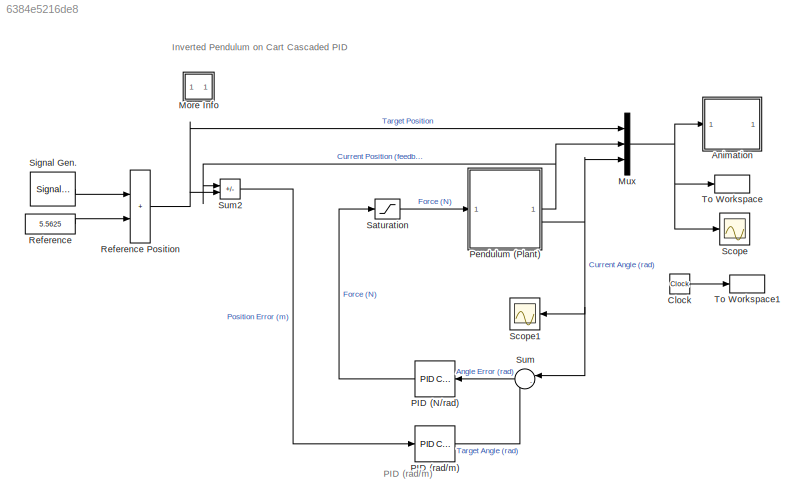
MODEL slx_6384e5216de8
KIND model
CONFIG AbsTol = 1e-6
CONFIG EnableMultiTasking = off
CONFIG FixedStep = 0.02
CONFIG MaxStep = 0.02
CONFIG MinStep = auto
CONFIG RelTol = 1e-3
CONFIG SampleTimeConstraint = Unconstrained
CONFIG SolverName = FixedStepAuto
CONFIG StartTime = 0
CONFIG StopTime = 20
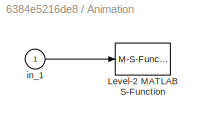
BLOCK [SubSystem] Animation
BLOCK [M-S-Function] Animation/Level-2 MATLAB S-Function
  FunctionName = pendan
  Parameters = RefBlock
BLOCK [Inport] Animation/in_1
BLOCK [Clock] Clock
BLOCK [SubSystem] More Info
  OpenFcn = showExample('simulink_general/penddemoExample')
BLOCK [Mux] Mux
  DisplayOption = bar
  Inputs = 3
BLOCK [Reference] PID (N//rad)  REF=slpidlib/PID Controller
  LibrarySourceBlock = simulink/Continuous/PID Controller
  SourceBlock = slpidlib/PID Controller
  SourceType = PID 1dof
BLOCK [Reference] PID (rad//m)  REF=slpidlib/PID Controller
  LibrarySourceBlock = simulink/Continuous/PID Controller
  SourceBlock = slpidlib/PID Controller
  SourceType = PID 1dof
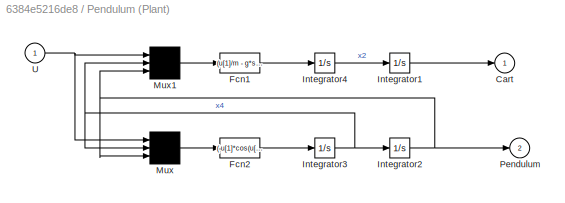
BLOCK [SubSystem] Pendulum (Plant)
BLOCK [Outport] Pendulum (Plant)/Cart
  InitialOutput = 0
  Unit = m
  VectorParamsAs1DForOutWhenUnconnected = off
BLOCK [Fcn] Pendulum (Plant)/Fcn1
  Expr = (u[1]/m - g*sin(u[3])*cos(u[3]) + l*power(u[2],2)*sin(u[3]))/(Mcart/m + power(sin(u[3]),2))
BLOCK [Fcn] Pendulum (Plant)/Fcn2
  Expr = (-u[1]*cos(u[3])/m + (Mcart+m)*g*sin(u[3])/m - l*power(u[2],2)*sin(u[3])*cos(u[3]))/(l*(Mcart/m + power(sin(u[3]),2)))
BLOCK [Integrator] Pendulum (Plant)/Integrator1
BLOCK [Integrator] Pendulum (Plant)/Integrator2
BLOCK [Integrator] Pendulum (Plant)/Integrator3
BLOCK [Integrator] Pendulum (Plant)/Integrator4
BLOCK [Mux] Pendulum (Plant)/Mux
  Inputs = 3
BLOCK [Mux] Pendulum (Plant)/Mux1
  Inputs = 3
BLOCK [Outport] Pendulum (Plant)/Pendulum
  InitialOutput = 0
  Port = 2
  Unit = rad
  VectorParamsAs1DForOutWhenUnconnected = off
BLOCK [Inport] Pendulum (Plant)/U
  Unit = N
BLOCK [Constant] Reference
  Value = 5.5625
BLOCK [Sum] Reference Position
  IconShape = rectangular
  InputSameDT = on
  OutDataTypeStr = Inherit: Same as first input
  SaturateOnIntegerOverflow = on
BLOCK [Saturate] Saturation
  LowerLimit = -10
  UpperLimit = 10
BLOCK [Scope] Scope
  Floating = off
  NumInputPorts = 1
  ScopeSpecificationString = Simulink.scopes.TimeScopeBlockCfg('CurrentConfiguration', extmgr.ConfigurationSet(extmgr.Configuration('Core','General UI',true),extmgr.Configuration('Core','Source UI',true),extmgr.Configuration('Sources','WiredSimulink',true),extmgr.Configuration('Visuals','Time Domain',true,'SerializedDisplays',{struct('MinYLimReal','-8.56852','MaxYLimReal','14.18038','YLabelReal','Refernce and Cart Position (m...<+1735ch>
BLOCK [Scope] Scope1
  Floating = off
  NumInputPorts = 1
  ScopeSpecificationString = Simulink.scopes.TimeScopeBlockCfg('CurrentConfiguration', extmgr.ConfigurationSet(extmgr.Configuration('Core','General UI',true),extmgr.Configuration('Core','Source UI',true),extmgr.Configuration('Sources','WiredSimulink',true,'DataLoggingVariableName','ScopeData1'),extmgr.Configuration('Visuals','Time Domain',true,'SerializedDisplays',{struct('MinYLimReal','-0.10097','MaxYLimReal','0.14294','YLab...<+1407ch>
BLOCK [SignalGenerator] Signal Gen.
  Amplitude = 0
  Frequency = 0.0400000
  Units = rad/sec
  WaveForm = square
BLOCK [Sum] Sum
  Inputs = |-+
BLOCK [Sum] Sum2
  IconShape = rectangular
  InputSameDT = on
  Inputs = -+
  OutDataTypeStr = Inherit: Same as first input
  SaturateOnIntegerOverflow = on
BLOCK [ToWorkspace] To Workspace
  SampleTime = 0.1
  VariableName = y
BLOCK [ToWorkspace] To Workspace1
  SampleTime = 0.1
  VariableName = t
ANNOTATION (root): Inverted Pendulum on Cart Cascaded PID
ANNOTATION (root): PID (rad/m)
LINE Animation/in_1:1 -> Animation/Level-2 MATLAB S-Function:1
LINE Clock:1 -> To Workspace1:1
NET Mux:1 -> Animation:1, Scope:1, To Workspace:1
LINE PID (N//rad):1 -> Saturation:1
LINE PID (rad//m):1 -> Sum:2
LINE Pendulum (Plant)/Fcn1:1 -> Pendulum (Plant)/Integrator4:1
LINE Pendulum (Plant)/Fcn2:1 -> Pendulum (Plant)/Integrator3:1
LINE Pendulum (Plant)/Integrator1:1 -> Pendulum (Plant)/Cart:1
NET Pendulum (Plant)/Integrator2:1 -> Pendulum (Plant)/Mux1:3, Pendulum (Plant)/Mux:3, Pendulum (Plant)/Pendulum:1
NET Pendulum (Plant)/Integrator3:1 -> Pendulum (Plant)/Integrator2:1, Pendulum (Plant)/Mux1:2, Pendulum (Plant)/Mux:2
LINE Pendulum (Plant)/Integrator4:1 -> Pendulum (Plant)/Integrator1:1
LINE Pendulum (Plant)/Mux1:1 -> Pendulum (Plant)/Fcn1:1
LINE Pendulum (Plant)/Mux:1 -> Pendulum (Plant)/Fcn2:1
NET Pendulum (Plant)/U:1 -> Pendulum (Plant)/Mux1:1, Pendulum (Plant)/Mux:1
NET Pendulum (Plant):1 -> Mux:2, Sum2:1
NET Pendulum (Plant):2 -> Mux:3, Scope1:1, Sum:1
NET Reference Position:1 -> Mux:1, Sum2:2
LINE Reference:1 -> Reference Position:2
LINE Saturation:1 -> Pendulum (Plant):1
LINE Signal Gen.:1 -> Reference Position:1
LINE Sum2:1 -> PID (rad//m):1
LINE Sum:1 -> PID (N//rad):1
note: NET lines group one-source signal fan-out (src -> all destinations, sorted); 1:1 wires keep LINE
